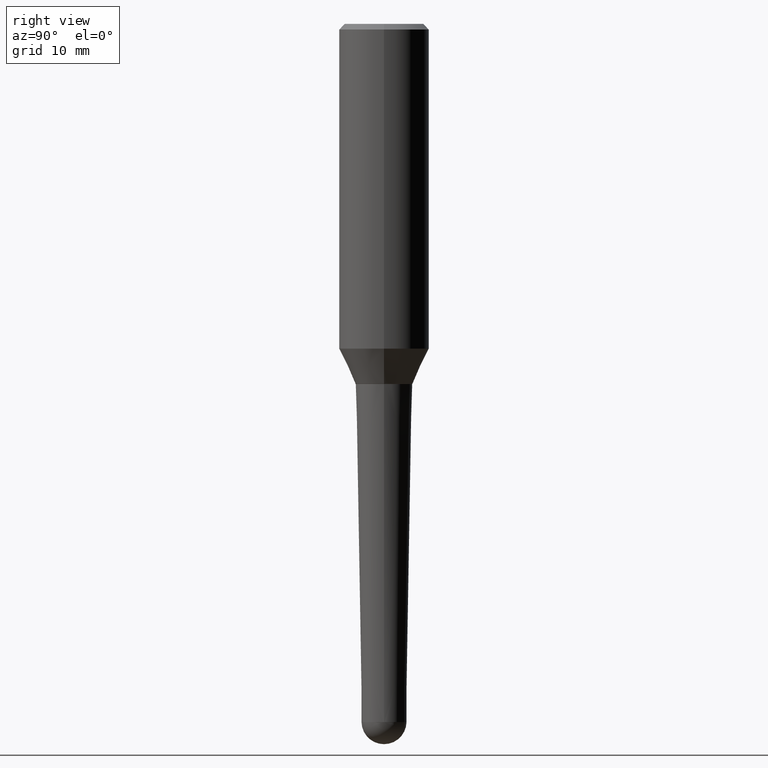
[diagram: clean part render]
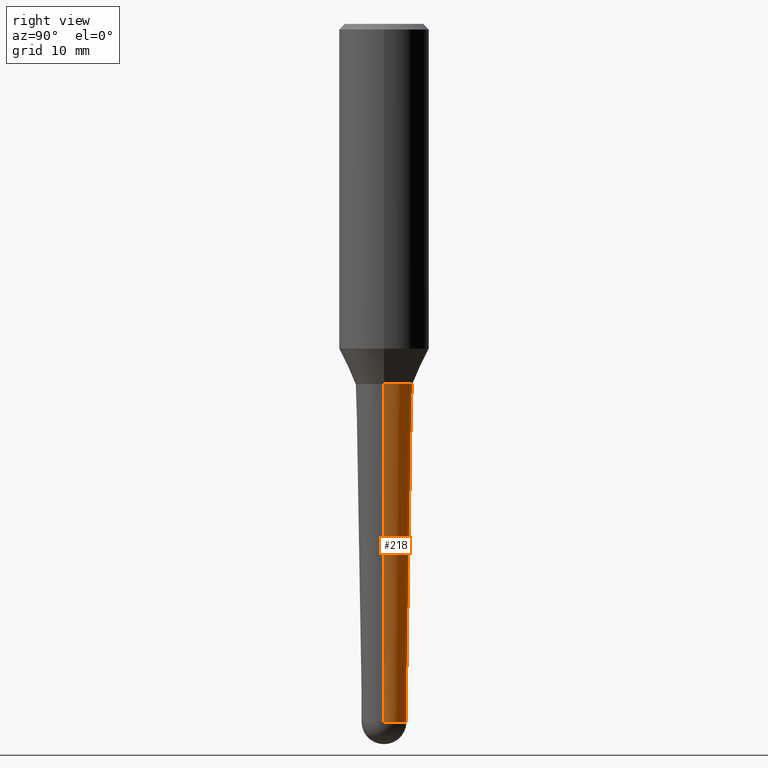
[diagram: same view with one face highlighted and labeled with its STEP entity id]
A machine part, right view. The second image highlights one B-rep face of the part: STEP entity #218.
In plain terms, the highlighted conical surface has half-angle 1 deg.
Its self-contained STEP definition (entity closure, byte-faithful):
#17 = VERTEX_POINT ( 'NONE', #27 ) ;
#27 = CARTESIAN_POINT ( 'NONE',  ( -0.1249809618945493112, -9.255582334932912889E-15, -3.877181550804660759 ) ) ;
#42 = DIRECTION ( 'NONE',  ( 1.000000000000000000, -6.982962677686266711E-15, 0.000000000000000000 ) ) ;
#47 = CARTESIAN_POINT ( 'NONE',  ( 8.727373923310620192E-16, 0.1249809618945357664, -3.877181550804661203 ) ) ;
#58 = ORIENTED_EDGE ( 'NONE', *, *, #295, .T. ) ;
#64 = CARTESIAN_POINT ( 'NONE',  ( -0.1577472877458967193, -5.862100783749240719E-15, -2.000000000000000000 ) ) ;
#82 = DIRECTION ( 'NONE',  ( 1.000000000000000000, -6.982962677686264344E-15, 0.000000000000000000 ) ) ;
#85 = LINE ( 'NONE', #369, #207 ) ;
#87 = FACE_OUTER_BOUND ( 'NONE', #105, .T. ) ;
#93 = DIRECTION ( 'NONE',  ( 0.01745240643728343879, 3.369080066536508461E-15, 0.9998476951563912696 ) ) ;
#102 = CARTESIAN_POINT ( 'NONE',  ( 0.1249809618945493112, -1.440984442427236798E-14, -3.877181550804660759 ) ) ;
#105 = EDGE_LOOP ( 'NONE', ( #240, #58, #235, #352, #128 ) ) ;
#113 = CIRCLE ( 'NONE', #165, 0.1249809618945493112 ) ;
#114 = DIRECTION ( 'NONE',  ( -2.445468806185136597E-29, 3.491481338843145583E-15, 1.000000000000000000 ) ) ;
#128 = ORIENTED_EDGE ( 'NONE', *, *, #440, .T. ) ;
#139 = EDGE_CURVE ( 'NONE', #347, #354, #448, .T. ) ;
#152 = AXIS2_PLACEMENT_3D ( 'NONE', #157, #114, #42 ) ;
#157 = CARTESIAN_POINT ( 'NONE',  ( 9.481526538409310003E-29, -1.353710703194140102E-14, -3.877181550804660759 ) ) ;
#163 = AXIS2_PLACEMENT_3D ( 'NONE', #399, #421, #82 ) ;
#165 = AXIS2_PLACEMENT_3D ( 'NONE', #311, #205, #382 ) ;
#176 = VERTEX_POINT ( 'NONE', #297 ) ;
#189 = CIRCLE ( 'NONE', #334, 0.1249809618945493112 ) ;
#205 = DIRECTION ( 'NONE',  ( -2.445468806185136597E-29, 3.491481338843145583E-15, 1.000000000000000000 ) ) ;
#207 = VECTOR ( 'NONE', #370, 39.37007874015748143 ) ;
#210 = DIRECTION ( 'NONE',  ( -2.445468806185136597E-29, 3.491481338843145583E-15, 1.000000000000000000 ) ) ;
#218 = ADVANCED_FACE ( 'NONE', ( #87 ), #250, .T. ) ;
#235 = ORIENTED_EDGE ( 'NONE', *, *, #139, .F. ) ;
#240 = ORIENTED_EDGE ( 'NONE', *, *, #418, .T. ) ;
#244 = DIRECTION ( 'NONE',  ( 1.000000000000000000, -6.982962677686266711E-15, 0.000000000000000000 ) ) ;
#245 = VERTEX_POINT ( 'NONE', #47 ) ;
#249 = CARTESIAN_POINT ( 'NONE',  ( 9.481526538409310003E-29, -1.353710703194140102E-14, -3.877181550804660759 ) ) ;
#250 = CONICAL_SURFACE ( 'NONE', #152, 0.1249809618945493112, 0.01745329251994322262 ) ;
#295 = EDGE_CURVE ( 'NONE', #17, #354, #85, .T. ) ;
#297 = CARTESIAN_POINT ( 'NONE',  ( 0.1249809618945493112, -1.124717526239724726E-14, -3.877181550804660759 ) ) ;
#311 = CARTESIAN_POINT ( 'NONE',  ( 9.481526538409310003E-29, -1.353710703194140102E-14, -3.877181550804660759 ) ) ;
#334 = AXIS2_PLACEMENT_3D ( 'NONE', #249, #210, #244 ) ;
#347 = VERTEX_POINT ( 'NONE', #386 ) ;
#352 = ORIENTED_EDGE ( 'NONE', *, *, #379, .F. ) ;
#354 = VERTEX_POINT ( 'NONE', #64 ) ;
#355 = VECTOR ( 'NONE', #93, 39.37007874015748143 ) ;
#369 = CARTESIAN_POINT ( 'NONE',  ( -0.1249809618945493112, -1.264906388611658269E-14, -3.877181550804660759 ) ) ;
#370 = DIRECTION ( 'NONE',  ( -0.01745240643728343879, 3.614956375479315570E-15, 0.9998476951563912696 ) ) ;
#379 = EDGE_CURVE ( 'NONE', #176, #347, #451, .T. ) ;
#382 = DIRECTION ( 'NONE',  ( 1.000000000000000000, -6.982962677686266711E-15, 0.000000000000000000 ) ) ;
#386 = CARTESIAN_POINT ( 'NONE',  ( 0.1577472877458967193, -8.084506100522123376E-15, -2.000000000000000000 ) ) ;
#399 = CARTESIAN_POINT ( 'NONE',  ( 4.890937612370273194E-29, -6.982962677686291165E-15, -2.000000000000000000 ) ) ;
#418 = EDGE_CURVE ( 'NONE', #245, #17, #189, .T. ) ;
#421 = DIRECTION ( 'NONE',  ( -2.445468806185136597E-29, 3.491481338843145583E-15, 1.000000000000000000 ) ) ;
#440 = EDGE_CURVE ( 'NONE', #176, #245, #113, .T. ) ;
#448 = CIRCLE ( 'NONE', #163, 0.1577472877458967193 ) ;
#451 = LINE ( 'NONE', #102, #355 ) ;